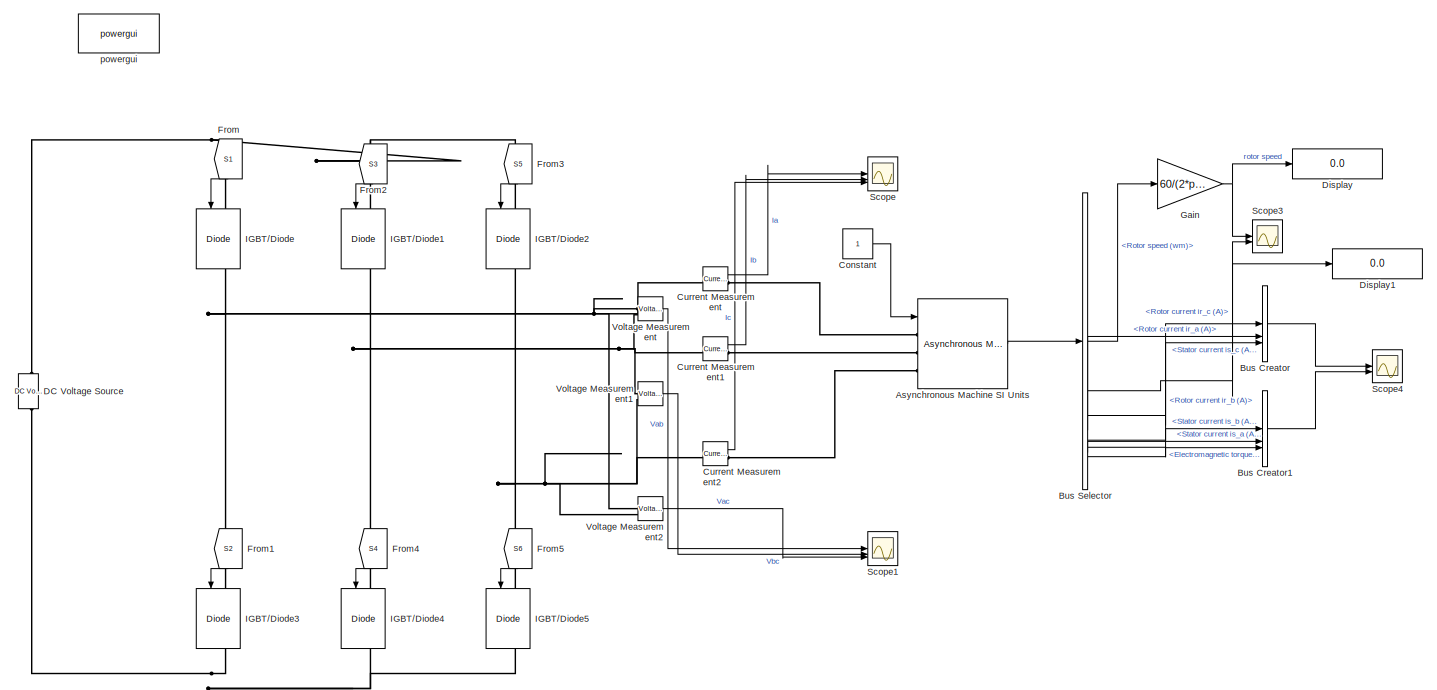
[diagram: root canvas - part 1/2, most of the canvas]
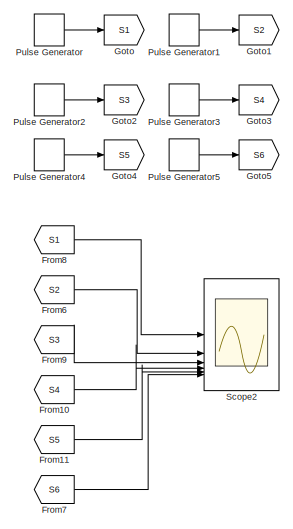
[diagram: root canvas - part 2/2, middle left region]
MODEL slx_2bf459a763d0
KIND model
CONFIG AbsTol = auto
CONFIG EnableMultiTasking = off
CONFIG FixedStep = 10e-6
CONFIG MaxStep = auto
CONFIG MinStep = auto
CONFIG RelTol = 1e-3
CONFIG SampleTimeConstraint = Unconstrained
CONFIG SolverName = ode3
CONFIG StartTime = 0.0
CONFIG StopTime = .5
WORKSPACE source: mxarray member
WORKSPACE pulse_generator_period = 0.02
BLOCK [Reference] Asynchronous Machine SI Units  REF=spsAsynchronousMachineSIUnitsLib/Asynchronous Machine
SI Units
  LibrarySourceBlock = sps_lib/Electrical Machines/Asynchronous Machine\nSI Units
  SourceBlock = spsAsynchronousMachineSIUnitsLib/Asynchronous Machine\nSI Units
  SourceType = Asynchronous Machine
BLOCK [BusCreator] Bus Creator
  DisplayOption = bar
  InheritFromInputs = on
  Inputs = 3
BLOCK [BusCreator] Bus Creator1
  DisplayOption = bar
  InheritFromInputs = on
  Inputs = 3
BLOCK [BusSelector] Bus Selector
  OutputSignals = Mechanical.Rotor speed (wm),Rotor measurements.Rotor current ir_c (A),Rotor measurements.Rotor current ir_b (A),Rotor measurements.Rotor current ir_a (A),Stator measurements.Stator current is_c (A),Stator measurements.Stator current is_b (A),Stator measurements.Stator current is_a (A),Mechanical.Electromagnetic torque Te (N*m)
BLOCK [Constant] Constant
BLOCK [Reference] Current Measurement  REF=spsCurrentMeasurementLib/Current Measurement
  LibrarySourceBlock = sps_lib/Sensors and Measurements/Current Measurement
  SourceBlock = spsCurrentMeasurementLib/Current Measurement
  SourceType = Current Measurement
  UserDataPersistent = on
BLOCK [Reference] Current Measurement1  REF=spsCurrentMeasurementLib/Current Measurement
  LibrarySourceBlock = sps_lib/Sensors and Measurements/Current Measurement
  SourceBlock = spsCurrentMeasurementLib/Current Measurement
  SourceType = Current Measurement
  UserDataPersistent = on
BLOCK [Reference] Current Measurement2  REF=spsCurrentMeasurementLib/Current Measurement
  LibrarySourceBlock = sps_lib/Sensors and Measurements/Current Measurement
  SourceBlock = spsCurrentMeasurementLib/Current Measurement
  SourceType = Current Measurement
  UserDataPersistent = on
BLOCK [Reference] DC Voltage Source  REF=spsDCVoltageSourceLib/DC Voltage Source
  LibrarySourceBlock = sps_lib/Sources/DC Voltage Source
  SourceBlock = spsDCVoltageSourceLib/DC Voltage Source
  SourceType = DC Voltage Source
BLOCK [Display] Display
  Decimation = 1
BLOCK [Display] Display1
  Decimation = 1
BLOCK [From] From
  GotoTag = S1
  NameLocation = left
BLOCK [From] From1
  GotoTag = S2
  NameLocation = left
BLOCK [From] From10
  GotoTag = S4
BLOCK [From] From11
  GotoTag = S5
BLOCK [From] From2
  GotoTag = S3
  NameLocation = left
BLOCK [From] From3
  GotoTag = S5
  NameLocation = left
BLOCK [From] From4
  GotoTag = S4
  NameLocation = left
BLOCK [From] From5
  GotoTag = S6
  NameLocation = left
BLOCK [From] From6
  GotoTag = S2
BLOCK [From] From7
  GotoTag = S6
BLOCK [From] From8
  GotoTag = S1
BLOCK [From] From9
  GotoTag = S3
BLOCK [Gain] Gain
  Gain = 60/(2*pi)
BLOCK [Goto] Goto
  GotoTag = S1
BLOCK [Goto] Goto1
  GotoTag = S2
BLOCK [Goto] Goto2
  GotoTag = S3
BLOCK [Goto] Goto3
  GotoTag = S4
BLOCK [Goto] Goto4
  GotoTag = S5
BLOCK [Goto] Goto5
  GotoTag = S6
BLOCK [Reference] IGBT//Diode  REF=spsIGBTDiodeLib/IGBT//Diode
  NameLocation = left
  SourceBlock = spsIGBTDiodeLib/IGBT//Diode
  SourceType = IGBT/Diode
BLOCK [Reference] IGBT//Diode1  REF=spsIGBTDiodeLib/IGBT//Diode
  NameLocation = left
  SourceBlock = spsIGBTDiodeLib/IGBT//Diode
  SourceType = IGBT/Diode
BLOCK [Reference] IGBT//Diode2  REF=spsIGBTDiodeLib/IGBT//Diode
  NameLocation = left
  SourceBlock = spsIGBTDiodeLib/IGBT//Diode
  SourceType = IGBT/Diode
BLOCK [Reference] IGBT//Diode3  REF=spsIGBTDiodeLib/IGBT//Diode
  NameLocation = left
  SourceBlock = spsIGBTDiodeLib/IGBT//Diode
  SourceType = IGBT/Diode
BLOCK [Reference] IGBT//Diode4  REF=spsIGBTDiodeLib/IGBT//Diode
  NameLocation = left
  SourceBlock = spsIGBTDiodeLib/IGBT//Diode
  SourceType = IGBT/Diode
BLOCK [Reference] IGBT//Diode5  REF=spsIGBTDiodeLib/IGBT//Diode
  NameLocation = left
  SourceBlock = spsIGBTDiodeLib/IGBT//Diode
  SourceType = IGBT/Diode
BLOCK [DiscretePulseGenerator] Pulse Generator
  Period = pulse_generator_period
  PulseType = Time based
  PulseWidth = 50
BLOCK [DiscretePulseGenerator] Pulse Generator1
  Period = pulse_generator_period
  PhaseDelay = 13.3e-3
  PulseType = Time based
  PulseWidth = 50
BLOCK [DiscretePulseGenerator] Pulse Generator2
  Period = pulse_generator_period
  PhaseDelay = 6.67e-3
  PulseType = Time based
  PulseWidth = 50
BLOCK [DiscretePulseGenerator] Pulse Generator3
  Period = pulse_generator_period
  PulseType = Time based
  PulseWidth = 50
BLOCK [DiscretePulseGenerator] Pulse Generator4
  Period = pulse_generator_period
  PhaseDelay = 13.3e-3
  PulseType = Time based
  PulseWidth = 50
BLOCK [DiscretePulseGenerator] Pulse Generator5
  Period = pulse_generator_period
  PhaseDelay = 6.67e-3
  PulseType = Time based
  PulseWidth = 50
BLOCK [Scope] Scope
  Floating = off
  NumInputPorts = 3
  ScopeSpecificationString = Simulink.scopes.TimeScopeBlockCfg('CurrentConfiguration', extmgr.ConfigurationSet(extmgr.Configuration('Core','General UI',true),extmgr.Configuration('Core','Source UI',true),extmgr.Configuration('Sources','WiredSimulink',true),extmgr.Configuration('Visuals','Time Domain',true,'SerializedDisplays',{struct('MinYLimReal','-51.15532','MaxYLimReal','103.40015','YLabelReal','','MinYLimMag','0.00000','M...<+3220ch>
BLOCK [Scope] Scope1
  Floating = off
  NumInputPorts = 3
  ScopeSpecificationString = Simulink.scopes.TimeScopeBlockCfg('CurrentConfiguration', extmgr.ConfigurationSet(extmgr.Configuration('Core','General UI',true),extmgr.Configuration('Core','Source UI',true),extmgr.Configuration('Sources','WiredSimulink',true,'DataLoggingVariableName','ScopeData1'),extmgr.Configuration('Visuals','Time Domain',true,'SerializedDisplays',{struct('MinYLimReal','-500.15878','MaxYLimReal','500.04863','...<+3348ch>
BLOCK [Scope] Scope2
  Floating = off
  NumInputPorts = 6
  ScopeSpecificationString = Simulink.scopes.TimeScopeBlockCfg('CurrentConfiguration', extmgr.ConfigurationSet(extmgr.Configuration('Core','General UI',true),extmgr.Configuration('Core','Source UI',true),extmgr.Configuration('Sources','WiredSimulink',true,'DataLoggingVariableName','ScopeData2'),extmgr.Configuration('Visuals','Time Domain',true,'SerializedDisplays',{struct('MinYLimReal','-0.125','MaxYLimReal','1.125','YLabelRe...<+1710ch>
BLOCK [Scope] Scope3
  Floating = off
  NumInputPorts = 2
  ScopeSpecificationString = Simulink.scopes.TimeScopeBlockCfg('CurrentConfiguration', extmgr.ConfigurationSet(extmgr.Configuration('Core','General UI',true),extmgr.Configuration('Core','Source UI',true),extmgr.Configuration('Sources','WiredSimulink',true,'DataLoggingVariableName','ScopeData1'),extmgr.Configuration('Visuals','Time Domain',true,'SerializedDisplays',{struct('MinYLimReal','784.01135','MaxYLimReal','1732.5531','Y...<+2293ch>
BLOCK [Scope] Scope4
  Floating = off
  NumInputPorts = 2
  ScopeSpecificationString = Simulink.scopes.TimeScopeBlockCfg('CurrentConfiguration', extmgr.ConfigurationSet(extmgr.Configuration('Core','General UI',true),extmgr.Configuration('Core','Source UI',true),extmgr.Configuration('Sources','WiredSimulink',true,'DataLoggingVariableName','ScopeData2'),extmgr.Configuration('Visuals','Time Domain',true,'SerializedDisplays',{struct('MinYLimReal','-146.20582','MaxYLimReal','113.96132','...<+2700ch>
BLOCK [Reference] Voltage Measurement  REF=spsVoltageMeasurementLib/Voltage Measurement
  LibrarySourceBlock = sps_lib/Sensors and Measurements/Voltage Measurement
  SourceBlock = spsVoltageMeasurementLib/Voltage Measurement
  SourceType = Voltage Measurement
  UserDataPersistent = on
BLOCK [Reference] Voltage Measurement1  REF=spsVoltageMeasurementLib/Voltage Measurement
  LibrarySourceBlock = sps_lib/Sensors and Measurements/Voltage Measurement
  SourceBlock = spsVoltageMeasurementLib/Voltage Measurement
  SourceType = Voltage Measurement
  UserDataPersistent = on
BLOCK [Reference] Voltage Measurement2  REF=spsVoltageMeasurementLib/Voltage Measurement
  LibrarySourceBlock = sps_lib/Sensors and Measurements/Voltage Measurement
  SourceBlock = spsVoltageMeasurementLib/Voltage Measurement
  SourceType = Voltage Measurement
  UserDataPersistent = on
BLOCK [Reference] powergui  REF=sps_lib/powergui
  LibrarySourceBlock = sps_lib/powergui
  Priority = 1
  SourceBlock = sps_lib/powergui
  SourceType = PSB option menu block
LINE Asynchronous Machine SI Units:1 -> Bus Selector:1
LINE Bus Creator1:1 -> Scope4:2
LINE Bus Creator:1 -> Scope4:1
LINE Bus Selector:1 -> Gain:1
NET Bus Selector:2 -> Display1:1, Scope3:2
LINE Bus Selector:3 -> Bus Creator:1
LINE Bus Selector:4 -> Bus Creator:2
LINE Bus Selector:5 -> Bus Creator:3
LINE Bus Selector:6 -> Bus Creator1:1
LINE Bus Selector:7 -> Bus Creator1:2
LINE Bus Selector:8 -> Bus Creator1:3
LINE Constant:1 -> Asynchronous Machine SI Units:1
LINE Current Measurement1:1 -> Scope:2
LINE Current Measurement2:1 -> Scope:3
LINE Current Measurement:1 -> Scope:1
LINE From10:1 -> Scope2:4
LINE From11:1 -> Scope2:5
LINE From1:1 -> IGBT//Diode3:1
LINE From2:1 -> IGBT//Diode1:1
LINE From3:1 -> IGBT//Diode2:1
LINE From4:1 -> IGBT//Diode4:1
LINE From5:1 -> IGBT//Diode5:1
LINE From6:1 -> Scope2:2
LINE From7:1 -> Scope2:6
LINE From8:1 -> Scope2:1
LINE From9:1 -> Scope2:3
LINE From:1 -> IGBT//Diode:1
NET Gain:1 -> Display:1, Scope3:1
LINE Pulse Generator1:1 -> Goto1:1
LINE Pulse Generator2:1 -> Goto2:1
LINE Pulse Generator3:1 -> Goto3:1
LINE Pulse Generator4:1 -> Goto4:1
LINE Pulse Generator5:1 -> Goto5:1
LINE Pulse Generator:1 -> Goto:1
LINE Voltage Measurement1:1 -> Scope1:2
LINE Voltage Measurement2:1 -> Scope1:3
LINE Voltage Measurement:1 -> Scope1:1
PLINE Asynchronous Machine SI Units:LConn1 -- Current Measurement:RConn1
PLINE Asynchronous Machine SI Units:LConn2 -- Current Measurement1:RConn1
PLINE Asynchronous Machine SI Units:LConn3 -- Current Measurement2:RConn1
PNET net1: Current Measurement1:LConn1 -- IGBT//Diode1:RConn1 -- IGBT//Diode4:LConn1 -- Voltage Measurement1:LConn1 -- Voltage Measurement:LConn2
PNET net2: Current Measurement2:LConn1 -- IGBT//Diode2:RConn1 -- IGBT//Diode5:LConn1 -- Voltage Measurement1:LConn2 -- Voltage Measurement2:LConn2
PNET net3: Current Measurement:LConn1 -- IGBT//Diode3:LConn1 -- IGBT//Diode:RConn1 -- Voltage Measurement2:LConn1 -- Voltage Measurement:LConn1
PNET net4: DC Voltage Source:LConn1 -- IGBT//Diode3:RConn1 -- IGBT//Diode4:RConn1 -- IGBT//Diode5:RConn1
PNET net5: DC Voltage Source:RConn1 -- IGBT//Diode1:LConn1 -- IGBT//Diode2:LConn1 -- IGBT//Diode:LConn1
note: NET lines group one-source signal fan-out (src -> all destinations, sorted); 1:1 wires keep LINE; PNET lines group multi-terminal physical nets as a canonical sorted terminal list (undirected conserving connections); 2-terminal nets keep the pairwise PLINE form
